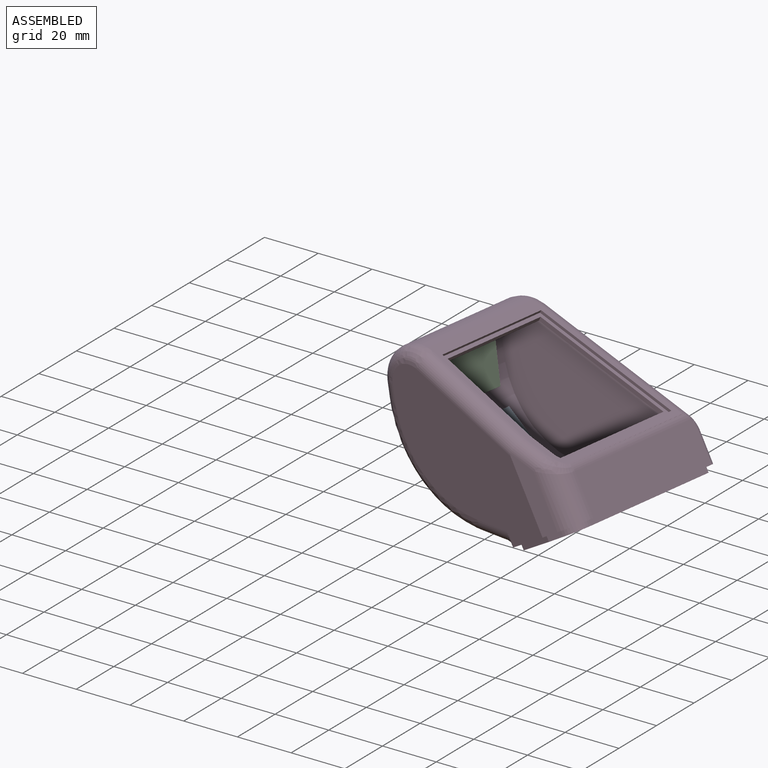
[diagram: assembled view]
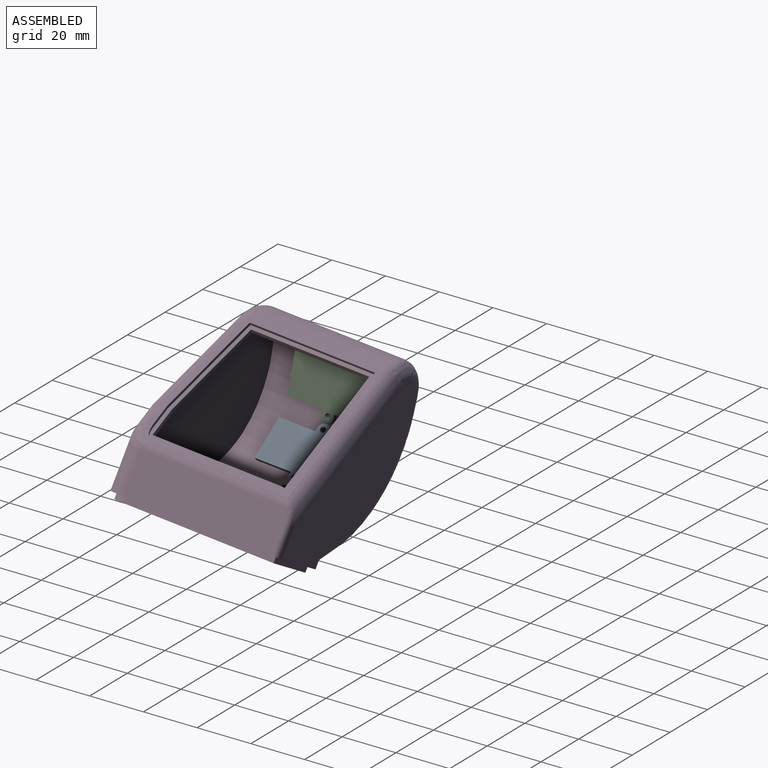
[diagram: assembled view, second angle]
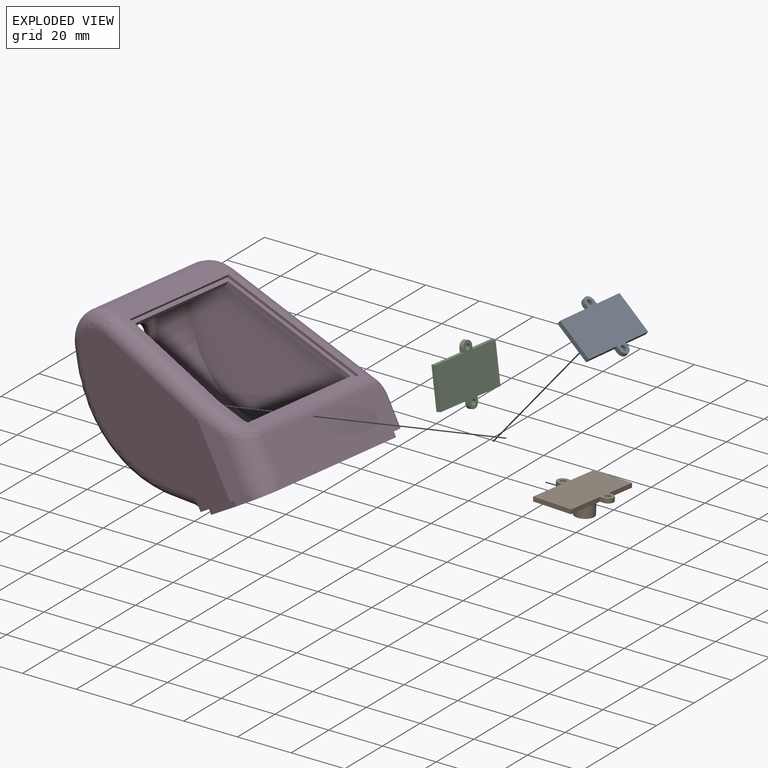
[diagram: exploded view]
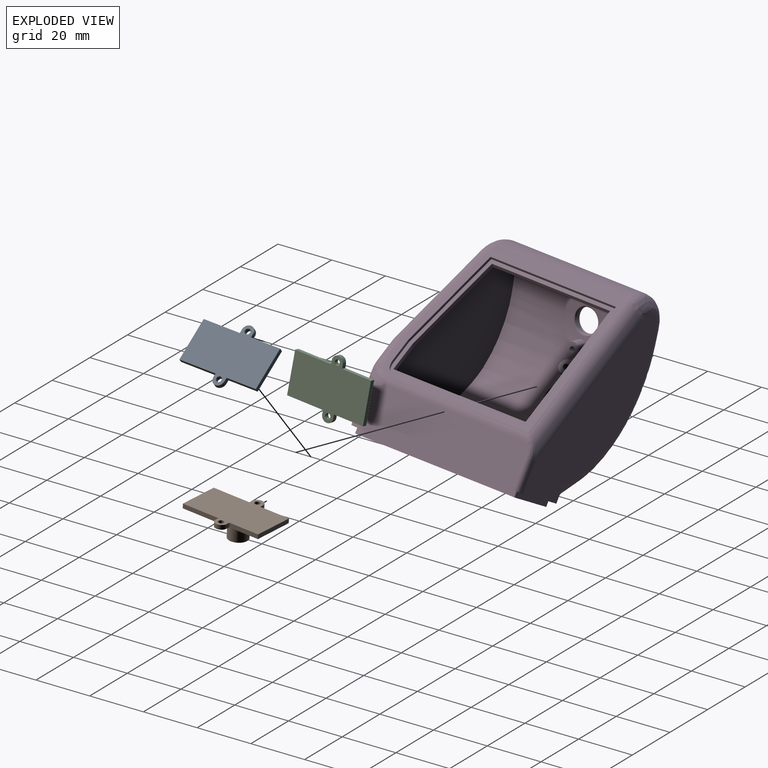
[diagram: exploded view, second angle]
ASSEMBLY  parts=4 mates=3
PART A: 18 faces, bbox 21.9x29.6x8.6 mm
  f0: plane 14.94x1.6mm, normal (0,1,0), area 23.9mm2, adj f1,f13,f14,f15
  f1: plane 11.28x1.6mm, normal (-1,0,0), area 18mm2, adj f0,f2,f14,f15
  f2: plane 1.6x1.32mm, normal (0,1,0), area 2.1mm2, adj f1,f3,f14,f15
  f3: cylinder r=2.15mm len=4.31mm, axis (0,0,-1), area 10.8mm2, adj f2,f4,f14,f15
  f4: plane 1.6x1.32mm, normal (0,-1,0), area 2.1mm2, adj f3,f5,f14,f15
  f5: plane 13.97x1.6mm, normal (-1,0,0), area 22.4mm2, adj f4,f6,f14,f15
  f6: plane 14.94x1.6mm, normal (0,-1,0), area 23.9mm2, adj f5,f7,f14,f15
  f7: plane 13.97x1.6mm, normal (1,0,0), area 22.4mm2, adj f6,f8,f14,f15
  f8: plane 1.6x1.32mm, normal (0,-1,0), area 2.1mm2, adj f7,f9,f14,f15
  f9: cylinder r=2.15mm len=4.31mm, axis (0,0,-1), area 10.8mm2, adj f8,f10,f14,f15
  f10: plane 1.6x1.32mm, normal (0,1,0), area 2.1mm2, adj f9,f13,f14,f15
  f11: cylinder r=1mm len=2mm, axis (0,0,-1), area 10.1mm2, adj f14,f15
  f12: cylinder r=1mm len=2mm, axis (0,0,-1), area 10.1mm2, adj f14,f15
  f13: plane 11.28x1.6mm, normal (1,0,0), area 18mm2, adj f0,f10,f14,f15
  f14: plane 29.56x21.88mm, normal (0,0,1), area 461.1mm2, adj f0,f1,f2,f3,f4,f5,f6,f7
  f15: plane 29.56x21.88mm, normal (0,0,-1), area 422.6mm2, adj f0,f1,f2,f3,f4,f5,f6,f7
  f16: cylinder r=3.5mm len=7mm, axis (0,0,1), area 153.9mm2, adj f15,f17
  f17: plane 7x7mm, normal (0,0,-1), area 38.5mm2, adj f16
PART B: same geometry as A
PART C: same geometry as A
PART D: 129 faces, bbox 73.2x72.2x74.4 mm
  f0: plane 62.85x33.4mm, normal (0,0,1), area 431.9mm2, adj f1,f4,f111,f112,f113,f114,f117,f118
  f1: extruded ~4.5x2.15mm, area 11.2mm2, adj f0,f2,f3,f4,f118
  f2: plane 4.11x2.15mm, normal (-0.99,0.14,0), area 8.9mm2, adj f1,f3,f4,f118
  f3: plane 2.15x1.32mm, normal (0,0,1), area 0.7mm2, adj f1,f2,f4
  f4: plane 64.37x56.03mm, normal (0,-1,0), area 2191.6mm2, adj f0,f1,f2,f3,f5,f94,f103,f104
  f5: cylinder r=40.5mm len=59.35mm, axis (0.14,0.99,0), area 1382mm2, adj f4,f6,f10,f14,f93,f94,f114,f118
  f6: cylinder r=2.5mm len=6.01mm, axis (-0.93,0.13,-0.34), area 60.7mm2, adj f5,f7
  f7: plane 4.96x4.7mm, normal (0.93,-0.13,0.34), area 16.5mm2, adj f6,f8
  f8: cylinder r=1mm len=5.39mm, axis (-0.93,0.13,-0.34), area 31.4mm2, adj f7,f9
  f9: plane 1.98x1.88mm, normal (0.93,-0.13,0.34), area 3.1mm2, adj f8
  f10: cylinder r=2.5mm len=6.21mm, axis (-0.5,0.07,-0.86), area 59mm2, adj f5,f11
  f11: plane 4.99x4.33mm, normal (0.5,-0.07,0.86), area 16.5mm2, adj f10,f12
  f12: cylinder r=1mm len=5.33mm, axis (-0.5,0.07,-0.86), area 31.4mm2, adj f11,f13
  f13: plane 2x1.73mm, normal (0.5,-0.07,0.86), area 3.1mm2, adj f12
  f14: bspline ~9.43x5.22mm, area 10.5mm2, adj f5,f15,f92,f94
  f15: cylinder r=4.25mm len=8.68mm, axis (0.93,-0.13,0.34), area 42.1mm2, adj f14,f16,f91,f92
  f16: bspline ~9.43x5.06mm, area 11.5mm2, adj f15,f17,f91
  f17: cylinder r=40.5mm len=54.52mm, axis (-0.14,-0.99,0), area 1347.5mm2, adj f16,f18,f84,f88,f89,f90
  f18: bspline ~22.81x18.57mm, area 200mm2, adj f17,f19,f82,f83,f90
  f19: bspline ~27.3x6.06mm, area 194.9mm2, adj f18,f20,f82,f90
  f20: cylinder r=5mm len=6.95mm, axis (-0.33,0.08,-0.94), area 41.2mm2, adj f19,f21,f81,f82
  f21: plane 48.8x8.71mm, normal (-0.93,0.13,0.34), area 243.8mm2, adj f20,f22,f30,f80,f90
  f22: torus R=4.75mm, axis (-0.93,0.13,0.34), area 10.1mm2, adj f21,f23,f29
  f23: cylinder r=4.25mm len=8.69mm, axis (0.93,-0.13,-0.34), area 43.7mm2, adj f22,f24,f25,f26,f28,f29
  f24: torus R=4.75mm, axis (-0.93,0.13,0.34), area 3mm2, adj f23,f25,f28,f103
  f25: bspline ~5.49x1.37mm, area 2.8mm2, adj f23,f24,f26,f104
  f26: torus R=4.75mm, axis (-0.93,0.13,0.34), area 3mm2, adj f23,f25,f27,f28
  f27: plane 26.93x4.75mm, normal (0.93,-0.13,-0.34), area 74.5mm2, adj f26,f94,f104,f114
  f28: bspline ~9.43x6.82mm, area 12.5mm2, adj f23,f24,f26,f94
  f29: bspline ~9.43x6.14mm, area 12.3mm2, adj f22,f23,f90
  f30: cylinder r=5mm len=6.95mm, axis (-0.34,0,-0.94), area 40.3mm2, adj f21,f31,f78,f79
  f31: plane 64x54.11mm, normal (0,1,0), area 1909.7mm2, adj f30,f32,f58,f59,f60,f63,f64,f78
  f32: cylinder r=2mm len=10.69mm, axis (0,0,-1), area 36.6mm2, adj f31,f33,f57,f64
  f33: plane 58.08x15.62mm, normal (0.99,-0.14,0), area 895.1mm2, adj f32,f34,f54,f57,f64
  f34: cylinder r=9mm len=20.07mm, axis (0,0,-1), area 228.2mm2, adj f33,f35,f53,f64
  f35: plane 27.87x6.24mm, normal (0,-1,0), area 142.1mm2, adj f34,f36,f52,f64,f82
  f36: cylinder r=5mm len=37.47mm, axis (-0.58,0.14,0.81), area 347.7mm2, adj f35,f37,f39,f52,f82
  f37: bspline ~12.63x9.05mm, area 80.5mm2, adj f36,f38,f80,f81,f82
  f38: cylinder r=12.5mm len=53.29mm, axis (-0.14,-0.99,0), area 599.8mm2, adj f37,f39,f59,f80
  f39: plane 57.85x45.56mm, normal (0.8,-0.11,0.59), area 429.7mm2, adj f36,f38,f40,f47,f48,f49,f50,f51
  f40: extruded ~3.82x3.41mm, area 4.7mm2, adj f39,f41,f47,f51
  f41: plane 53.88x42.34mm, normal (0.8,-0.11,0.59), area 302.1mm2, adj f40,f42,f43,f44,f45,f46,f47,f48
  f42: plane 31.71x23.2mm, normal (0.17,0.98,-0.05), area 57.4mm2, adj f41,f43,f46,f110
  f43: plane 9.98x7.91mm, normal (0.09,0.99,0.07), area 17mm2, adj f41,f42,f44,f110
  f44: plane 51.06x8.35mm, normal (-0.58,0.08,0.81), area 77.1mm2, adj f41,f43,f45,f110
  f45: plane 40.8x30.68mm, normal (-0.09,-0.99,-0.07), area 74.4mm2, adj f41,f44,f46,f110
  f46: plane 45.62x7.59mm, normal (0.58,-0.08,-0.81), area 68.8mm2, adj f41,f42,f45,f110
  f47: plane 52.37x8.14mm, normal (-0.58,0.08,0.81), area 52.8mm2, adj f39,f40,f41,f48
  f48: plane 42.93x32.07mm, normal (-0.09,-0.99,-0.07), area 52.6mm2, adj f39,f41,f47,f49
  f49: plane 48.33x7.58mm, normal (0.58,-0.08,-0.81), area 48.7mm2, adj f39,f41,f48,f50
  f50: plane 32.64x23.68mm, normal (0.17,0.98,-0.05), area 39.8mm2, adj f39,f41,f49,f51
  f51: plane 7.65x6.02mm, normal (0.09,0.99,0.07), area 8.8mm2, adj f39,f40,f41,f50
  f52: cylinder r=5mm len=10.42mm, axis (0.59,0,-0.8), area 66.4mm2, adj f35,f36,f39,f53
  f53: bspline ~8.91x7.88mm, area 52.2mm2, adj f34,f39,f52,f54
  f54: cylinder r=5mm len=56.45mm, axis (-0.14,-0.99,0), area 176.5mm2, adj f33,f39,f53,f55,f56
  f55: bspline ~2.7x2.67mm, area 1.4mm2, adj f54,f57,f58
  f56: bspline ~1.57x1.4mm, area 0.3mm2, adj f54,f58
  f57: bspline ~6.67x4.22mm, area 15.1mm2, adj f32,f33,f55,f58
  f58: cylinder r=5mm len=53.21mm, axis (-0.59,0,0.8), area 500.2mm2, adj f31,f39,f55,f56,f57,f59
  f59: bspline ~12.28x9.06mm, area 81.6mm2, adj f31,f38,f58,f78,f80
  f60: cylinder r=5mm len=14.77mm, axis (0.87,0,-0.5), area 91mm2, adj f31,f61,f62,f88,f89
  f61: bspline ~5.6x3.07mm, area 7.6mm2, adj f60,f62,f64
  f62: bspline ~6.77x3.32mm, area 9.5mm2, adj f60,f61,f63,f64
  f63: cylinder r=0.5mm len=5.13mm, axis (0,0,-1), area 1.3mm2, adj f31,f62,f64
  f64: plane 67.85x37mm, normal (0,0,-1), area 358.4mm2, adj f31,f32,f33,f34,f35,f61,f62,f63
  f65: plane 11.65x2.88mm, normal (-0.24,-0.97,0), area 24mm2, adj f64,f66,f67,f74
  f66: plane 63.85x32.68mm, normal (0,0,-1), area 407mm2, adj f65,f67,f68,f69,f70,f71,f72,f73
  f67: cylinder r=0.5mm len=2mm, axis (0,0,1), area 1.5mm2, adj f64,f65,f66,f68
  f68: plane 59.98x8.43mm, normal (-0.99,0.14,0), area 121.1mm2, adj f64,f66,f67,f69
  f69: cylinder r=0.5mm len=2mm, axis (0,0,1), area 1.4mm2, adj f64,f66,f68,f70
  f70: plane 23.25x2mm, normal (0,1,0), area 46.5mm2, adj f64,f66,f69,f71
  f71: cylinder r=0.5mm len=2mm, axis (0,0,1), area 1.7mm2, adj f64,f66,f70,f72
  f72: plane 57.25x8.05mm, normal (0.99,-0.14,0), area 115.6mm2, adj f64,f66,f71,f73
  f73: cylinder r=7mm len=6.93mm, axis (0,0,1), area 20mm2, adj f64,f66,f72,f74
  f74: plane 5.67x2mm, normal (0,-1,0), area 11.3mm2, adj f64,f65,f66,f73
  f75: bspline ~5.24x2.93mm, area 7.9mm2, adj f64,f76,f83
  f76: bspline ~6.44x2.92mm, area 9.8mm2, adj f64,f75,f77,f83
  f77: cylinder r=0.5mm len=5.23mm, axis (0,0,1), area 1.4mm2, adj f64,f76,f82
  f78: bspline ~11.7x9.96mm, area 96.2mm2, adj f30,f31,f59,f80
  f79: bspline ~27.3x7.07mm, area 190mm2, adj f30,f31,f89,f90
  f80: cylinder r=12.5mm len=52.1mm, axis (-0.14,-0.99,0), area 758.8mm2, adj f21,f37,f38,f59,f78,f81
  f81: bspline ~13.18x10.89mm, area 97.5mm2, adj f20,f37,f80,f82
  f82: plane 64x41.06mm, normal (-0.24,-0.97,0), area 1687.4mm2, adj f18,f19,f20,f35,f36,f37,f64,f77
  f83: cylinder r=5mm len=13.38mm, axis (0.84,-0.21,-0.5), area 90.6mm2, adj f18,f75,f76,f82,f88
  f84: bspline ~9.49x5.83mm, area 11.8mm2, adj f17,f85,f87
  f85: cylinder r=4.25mm len=8.61mm, axis (0.5,-0.07,0.86), area 43.2mm2, adj f84,f86,f87,f93
  f86: torus R=4.75mm, axis (-0.5,0.07,-0.86), area 9.3mm2, adj f85,f93,f118
  f87: torus R=4.75mm, axis (-0.5,0.07,-0.86), area 10.6mm2, adj f84,f85,f88
  f88: plane 55x19.59mm, normal (-0.5,0.07,-0.86), area 727.5mm2, adj f17,f60,f64,f83,f87
  f89: bspline ~22.81x20.27mm, area 196.5mm2, adj f17,f31,f60,f79,f90
  f90: cylinder r=40.5mm len=48.68mm, axis (-0.14,-0.99,0), area 1273.3mm2, adj f17,f18,f19,f21,f29,f79,f89,f91
  f91: bspline ~9.43x5.25mm, area 11.3mm2, adj f15,f16,f90
  f92: bspline ~9.43x5.54mm, area 10.3mm2, adj f14,f15,f94
  f93: bspline ~9.48x5.68mm, area 12.1mm2, adj f5,f85,f86
  f94: cylinder r=40.5mm len=53.17mm, axis (0.14,0.99,0), area 1303.3mm2, adj f4,f5,f14,f27,f28,f92,f95,f99
  f95: cylinder r=2.5mm len=6.01mm, axis (-0.93,0.13,-0.34), area 60.5mm2, adj f94,f96
  f96: plane 4.96x4.7mm, normal (0.93,-0.13,0.34), area 16.5mm2, adj f95,f97
  f97: cylinder r=1mm len=5.39mm, axis (-0.93,0.13,-0.34), area 31.4mm2, adj f96,f98
  f98: plane 1.98x1.88mm, normal (0.93,-0.13,0.34), area 3.1mm2, adj f97
  f99: cylinder r=2.5mm len=6.01mm, axis (-0.93,0.13,0.34), area 60.7mm2, adj f94,f100
  f100: plane 4.96x4.7mm, normal (0.93,-0.13,-0.34), area 16.5mm2, adj f99,f101
  f101: cylinder r=1mm len=5.39mm, axis (-0.93,0.13,0.34), area 31.4mm2, adj f100,f102
  f102: plane 1.98x1.88mm, normal (0.93,-0.13,-0.34), area 3.1mm2, adj f101
  f103: plane 22.48x3.77mm, normal (0.93,-0.13,-0.34), area 61.3mm2, adj f4,f24,f94,f104
  f104: cylinder r=12.5mm len=56.93mm, axis (0.14,0.99,0), area 726.7mm2, adj f4,f25,f27,f103,f105,f109,f114
  f105: cylinder r=2.5mm len=6.12mm, axis (-0.93,0.13,0.34), area 65.5mm2, adj f104,f106
  f106: plane 4.96x4.7mm, normal (0.93,-0.13,-0.34), area 16.5mm2, adj f105,f107
  f107: cylinder r=1mm len=5.39mm, axis (-0.93,0.13,0.34), area 31.4mm2, adj f106,f108
  f108: plane 1.98x1.88mm, normal (0.93,-0.13,-0.34), area 3.1mm2, adj f107
  f109: cylinder r=12.5mm len=58.73mm, axis (0.14,0.99,0), area 575.9mm2, adj f4,f104,f110,f114
  f110: plane 66.17x48.52mm, normal (-0.8,0.11,-0.59), area 1007.5mm2, adj f4,f42,f43,f44,f45,f46,f109,f111
  f111: plane 57.25x13.68mm, normal (-0.99,0.14,0), area 791.1mm2, adj f0,f4,f110,f112
  f112: cylinder r=6.5mm len=21.33mm, axis (0,0,-1), area 162.9mm2, adj f0,f110,f111,f113
  f113: plane 28.92x5.61mm, normal (0,1,0), area 140.9mm2, adj f0,f110,f112,f114
  f114: plane 64.25x43.16mm, normal (0.24,0.97,0), area 1942.7mm2, adj f0,f5,f27,f94,f104,f109,f110,f113
  f115: plane 2.49x1.06mm, normal (0,0,1), area 0.8mm2, adj f114,f116,f117
  f116: plane 4.11x2.23mm, normal (-0.99,0.14,0), area 9.3mm2, adj f114,f115,f117,f118
  f117: extruded ~4.5x2.49mm, area 11.6mm2, adj f0,f114,f115,f116,f118
  f118: plane 59.6x19.07mm, normal (0.5,-0.07,0.86), area 688.6mm2, adj f0,f1,f2,f4,f5,f86,f114,f116
  f119: cylinder r=2.5mm len=6.84mm, axis (-0.5,0.07,-0.86), area 78.5mm2, adj f118,f120
  f120: plane 4.99x4.33mm, normal (0.5,-0.07,0.86), area 16.5mm2, adj f119,f121
  f121: cylinder r=1mm len=5.33mm, axis (-0.5,0.07,-0.86), area 31.4mm2, adj f120,f122
  f122: plane 2x1.73mm, normal (0.5,-0.07,0.86), area 3.1mm2, adj f121
  f123: cylinder r=4.5mm len=4.5mm, axis (0,0,1), area 29mm2, adj f0,f66,f124,f128
  f124: plane 54.98x7.73mm, normal (-0.99,0.14,0), area 249.8mm2, adj f0,f66,f123,f125
  f125: plane 19.21x4.5mm, normal (0,-1,0), area 86.5mm2, adj f0,f66,f124,f126
  f126: plane 56.47x7.94mm, normal (0.99,-0.14,0), area 256.6mm2, adj f0,f66,f125,f127
  f127: plane 9.6x4.5mm, normal (0.24,0.97,0), area 44.5mm2, adj f0,f66,f126,f128
  f128: plane 5.36x4.5mm, normal (0,1,0), area 24.1mm2, adj f0,f66,f123,f127
PLACE A rot(axis=(-0.05,0.99,-0.09),40.1deg) t=(-35.97,34.38,-24.47)mm
PLACE B rot(axis=(-0.64,-0.01,-0.77),5.2deg) t=(-11.82,32.63,-21.69)mm
PLACE C rot(axis=(-0.01,1,-0.07),79.7deg) t=(-56.47,35.89,-10.78)mm
PLACE D rot(axis=(-0.2,-0.96,0.18),31deg) t=(12.44,34.51,-14.44)mm
MATE revolute D.f10 <-> B.f3  axis (0,0.06,1) through (-35.59,45.75,-22.43)mm
MATE revolute A.f3 <-> D.f95  axis (-0.64,-0.01,-0.77) through (-54.24,47.57,-9.32)mm
MATE revolute C.f3 <-> D.f105  axis (-0.98,0.04,-0.18) through (-60.21,49.18,12.61)mm
